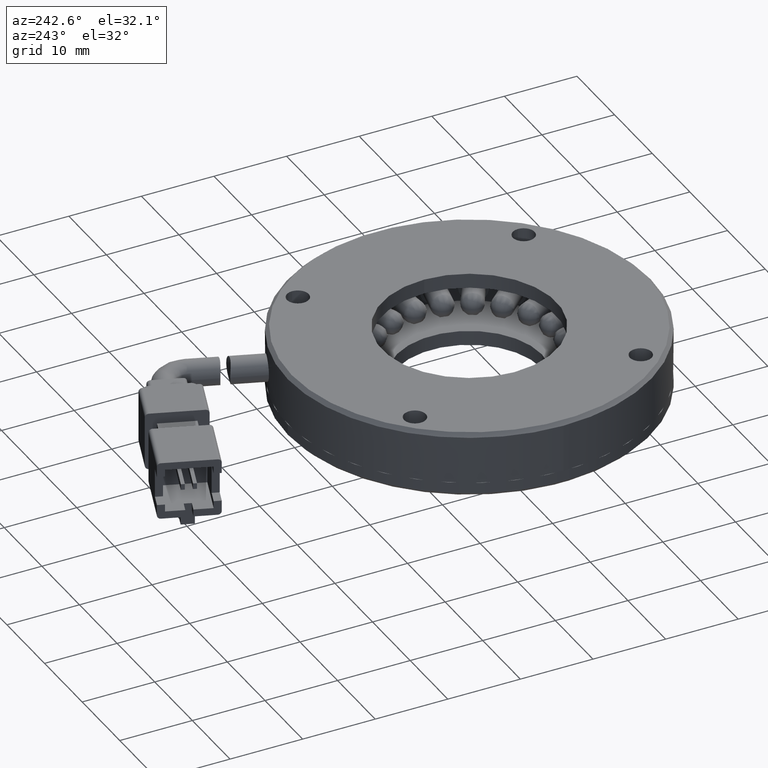
[diagram: clean part render]
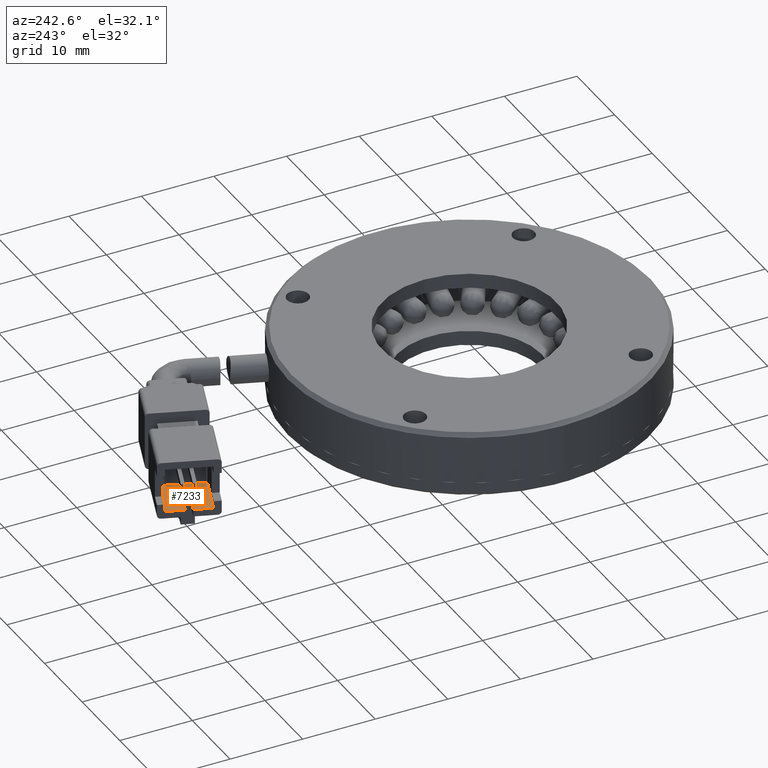
[diagram: same view with one face highlighted and labeled with its STEP entity id]
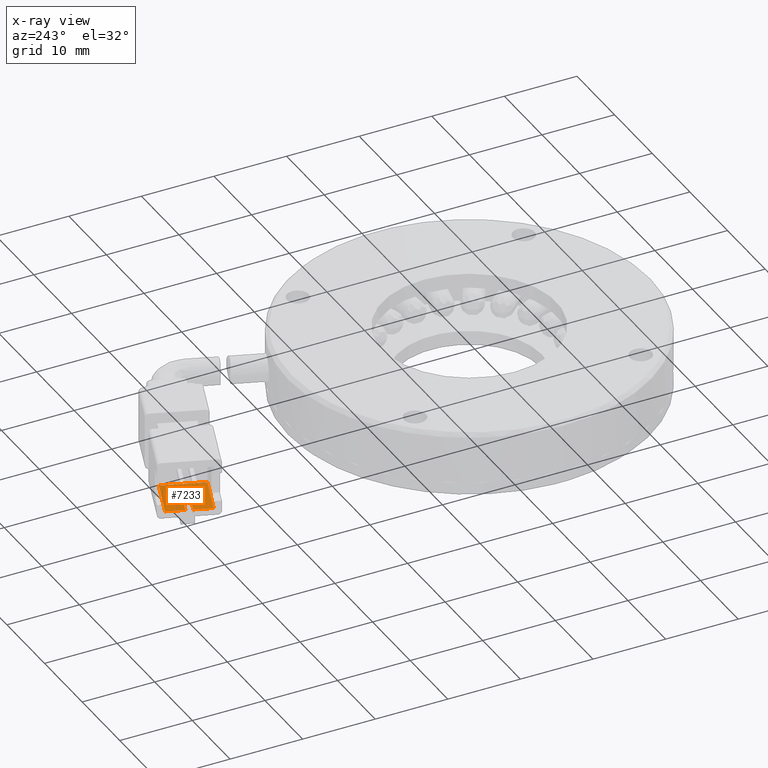
[diagram: x-ray of the same camera — body ghosted, the highlighted face saturated]
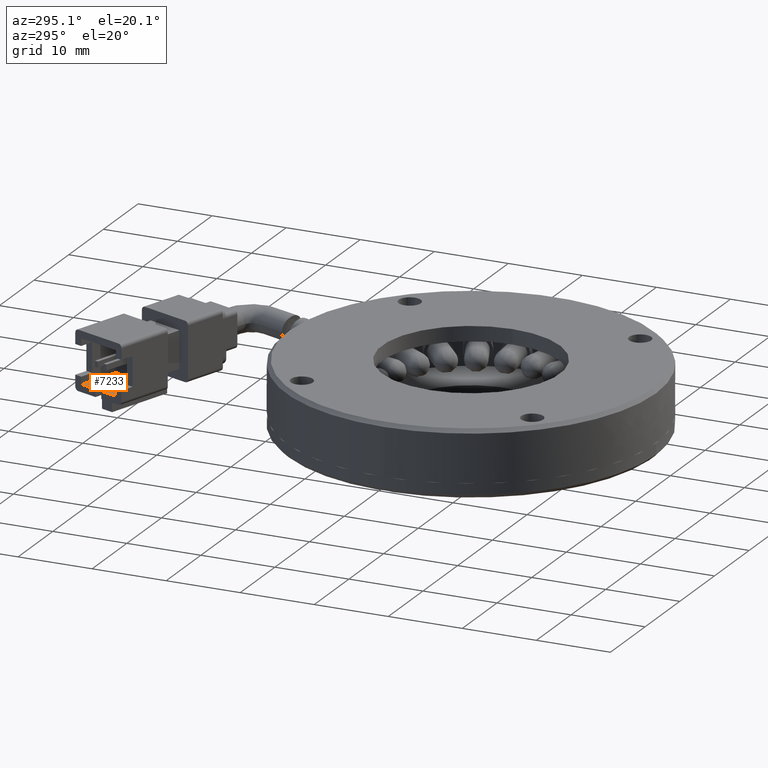
[diagram: same view with one face highlighted and labeled with its STEP entity id]
A machine part, auxiliary view. The second image highlights one B-rep face of the part: STEP entity #7233.
The next image is the same camera in x-ray: the body ghosted, the highlighted face saturated — about 0% of this face is hidden behind the body in this view.
A second angle (auxiliary view) of the same face is appended — the face is thin or edge-on in the first view.
In plain terms, the highlighted planar face has unit normal (-0, 0, -1).
Its self-contained STEP definition (entity closure, byte-faithful):
#219 = VERTEX_POINT ( 'NONE', #5544 ) ;
#438 = ORIENTED_EDGE ( 'NONE', *, *, #18055, .T. ) ;
#805 = DIRECTION ( 'NONE',  ( 0.3420201433256692100, 0.9396926207859083200, -2.706285357870893100E-018 ) ) ;
#2200 = VECTOR ( 'NONE', #3288, 999.9999999999998900 ) ;
#2393 = LINE ( 'NONE', #19390, #7821 ) ;
#2861 = LINE ( 'NONE', #23180, #8295 ) ;
#3253 = LINE ( 'NONE', #10920, #18894 ) ;
#3288 = DIRECTION ( 'NONE',  ( -0.9396926207859084300, 0.3420201433256689900, 1.110223024625157000E-016 ) ) ;
#3440 = CARTESIAN_POINT ( 'NONE',  ( -131.8981421280428500, 54.02220572926266600, -3.499999999999925800 ) ) ;
#3617 = VECTOR ( 'NONE', #14254, 999.9999999999998900 ) ;
#3629 = ORIENTED_EDGE ( 'NONE', *, *, #19912, .T. ) ;
#3706 = EDGE_LOOP ( 'NONE', ( #12859, #25645, #24961, #438, #3629, #11608, #25626, #12860 ) ) ;
#4374 = CARTESIAN_POINT ( 'NONE',  ( -126.2599864033274200, 51.97008486930866400, -3.499999999999935600 ) ) ;
#5544 = CARTESIAN_POINT ( 'NONE',  ( -132.7531924863569900, 51.67297417729796600, -3.499999999999927600 ) ) ;
#5914 = VERTEX_POINT ( 'NONE', #3440 ) ;
#6236 = CARTESIAN_POINT ( 'NONE',  ( -128.3121072632814300, 46.33192914459328900, -3.499999999999932900 ) ) ;
#7043 = LINE ( 'NONE', #21802, #11844 ) ;
#7233 = ADVANCED_FACE ( 'NONE', ( #19054 ), #19016, .F. ) ;
#7568 = EDGE_CURVE ( 'NONE', #11287, #22198, #2393, .T. ) ;
#7821 = VECTOR ( 'NONE', #19479, 999.9999999999998900 ) ;
#7870 = AXIS2_PLACEMENT_3D ( 'NONE', #8935, #23176, #10970 ) ;
#8291 = DIRECTION ( 'NONE',  ( 0.9396926207859084300, -0.3420201433256689900, -1.110223024625157000E-016 ) ) ;
#8295 = VECTOR ( 'NONE', #805, 999.9999999999998900 ) ;
#8348 = CARTESIAN_POINT ( 'NONE',  ( -133.0952126296826900, 50.73328155651206100, -3.499999999999933800 ) ) ;
#8935 = CARTESIAN_POINT ( 'NONE',  ( -128.3121072632814300, 46.33192914459328900, -3.499999999999934700 ) ) ;
#9057 = LINE ( 'NONE', #12168, #3617 ) ;
#9372 = VERTEX_POINT ( 'NONE', #8348 ) ;
#9723 = LINE ( 'NONE', #19277, #19948 ) ;
#10660 = LINE ( 'NONE', #6236, #26267 ) ;
#10735 = CARTESIAN_POINT ( 'NONE',  ( -131.3436535551781200, 51.15994396230951200, -3.499999999999933800 ) ) ;
#10920 = CARTESIAN_POINT ( 'NONE',  ( -131.7271320563800100, 54.49205203965568200, -3.499999999999933800 ) ) ;
#10970 = DIRECTION ( 'NONE',  ( 0.9396926207859083200, -0.3420201433256692100, -2.200085921048892400E-016 ) ) ;
#11249 = CARTESIAN_POINT ( 'NONE',  ( -131.6856736985038200, 50.22025134152355700, -3.499999999999934700 ) ) ;
#11287 = VERTEX_POINT ( 'NONE', #4374 ) ;
#11608 = ORIENTED_EDGE ( 'NONE', *, *, #7568, .F. ) ;
#11844 = VECTOR ( 'NONE', #23828, 999.9999999999998900 ) ;
#12168 = CARTESIAN_POINT ( 'NONE',  ( -126.2599864033273600, 51.97008486930864300, -3.499999999999935600 ) ) ;
#12860 = ORIENTED_EDGE ( 'NONE', *, *, #18184, .T. ) ;
#12859 = ORIENTED_EDGE ( 'NONE', *, *, #22994, .F. ) ;
#13022 = DIRECTION ( 'NONE',  ( -0.9396926207859083200, 0.3420201433256692100, 2.200085921048892400E-016 ) ) ;
#13059 = LINE ( 'NONE', #13461, #2200 ) ;
#13265 = CARTESIAN_POINT ( 'NONE',  ( -128.3121072632814000, 46.33192914459328900, -3.499999999999934700 ) ) ;
#13461 = CARTESIAN_POINT ( 'NONE',  ( -133.0952126296826900, 50.73328155651206100, -3.499999999999934700 ) ) ;
#14254 = DIRECTION ( 'NONE',  ( -0.9396926207859084300, 0.3420201433256689900, 1.110223024625157000E-016 ) ) ;
#15016 = DIRECTION ( 'NONE',  ( -0.3420201433256689900, -0.9396926207859084300, 7.782399606232325600E-017 ) ) ;
#17553 = EDGE_CURVE ( 'NONE', #26277, #9372, #13059, .T. ) ;
#18055 = EDGE_CURVE ( 'NONE', #9372, #22237, #3253, .T. ) ;
#18184 = EDGE_CURVE ( 'NONE', #5914, #219, #7043, .T. ) ;
#18601 = EDGE_CURVE ( 'NONE', #26277, #18961, #2861, .T. ) ;
#18894 = VECTOR ( 'NONE', #15016, 999.9999999999998900 ) ;
#18961 = VERTEX_POINT ( 'NONE', #10735 ) ;
#19016 = PLANE ( 'NONE',  #7870 ) ;
#19054 = FACE_OUTER_BOUND ( 'NONE', #3706, .T. ) ;
#19277 = CARTESIAN_POINT ( 'NONE',  ( -127.1150367616415800, 49.62085331734400700, -3.499999999999934700 ) ) ;
#19390 = CARTESIAN_POINT ( 'NONE',  ( -128.3121072632814000, 46.33192914459325400, -3.499999999999934700 ) ) ;
#19479 = DIRECTION ( 'NONE',  ( -0.3420201433256689900, -0.9396926207859084300, 7.782399606232325600E-017 ) ) ;
#19585 = CARTESIAN_POINT ( 'NONE',  ( -133.9502629879968400, 48.38405000454731200, -3.499999999999932900 ) ) ;
#19912 = EDGE_CURVE ( 'NONE', #22237, #22198, #10660, .T. ) ;
#19948 = VECTOR ( 'NONE', #13022, 999.9999999999998900 ) ;
#20404 = EDGE_CURVE ( 'NONE', #11287, #5914, #9057, .T. ) ;
#21802 = CARTESIAN_POINT ( 'NONE',  ( -131.7271320563800100, 54.49205203965568200, -3.499999999999915600 ) ) ;
#22198 = VERTEX_POINT ( 'NONE', #13265 ) ;
#22237 = VERTEX_POINT ( 'NONE', #19585 ) ;
#22994 = EDGE_CURVE ( 'NONE', #18961, #219, #9723, .T. ) ;
#23176 = DIRECTION ( 'NONE',  ( -2.076660546164403700E-016, 7.270429382406067200E-017, -1.000000000000000000 ) ) ;
#23180 = CARTESIAN_POINT ( 'NONE',  ( -132.5407240568179900, 47.87101978955879400, -3.499999999999933800 ) ) ;
#23828 = DIRECTION ( 'NONE',  ( -0.3420201433256689900, -0.9396926207859084300, 7.782399606232325600E-017 ) ) ;
#24961 = ORIENTED_EDGE ( 'NONE', *, *, #17553, .T. ) ;
#25626 = ORIENTED_EDGE ( 'NONE', *, *, #20404, .T. ) ;
#25645 = ORIENTED_EDGE ( 'NONE', *, *, #18601, .F. ) ;
#26267 = VECTOR ( 'NONE', #8291, 999.9999999999998900 ) ;
#26277 = VERTEX_POINT ( 'NONE', #11249 ) ;